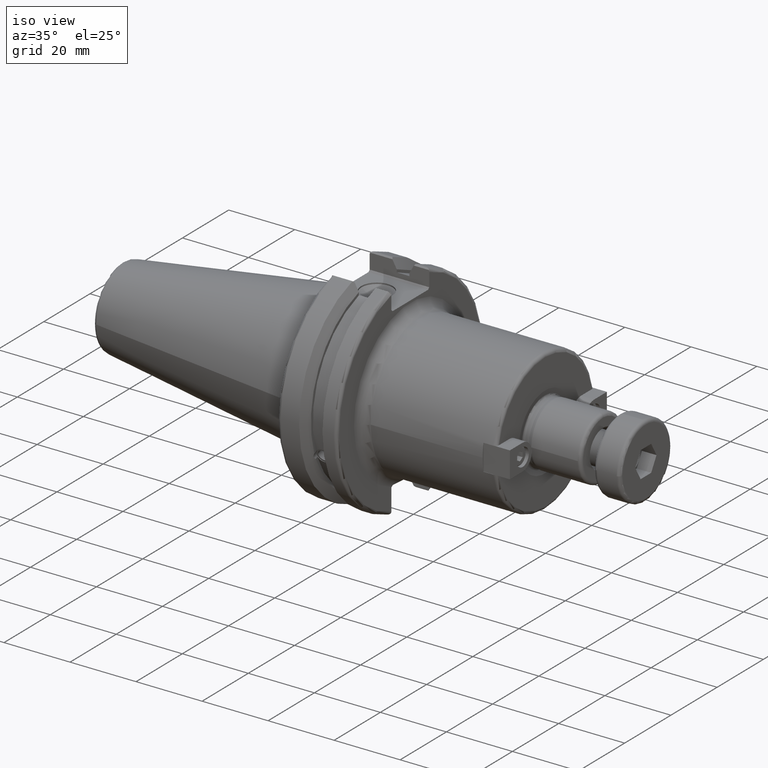
[diagram: clean part render]
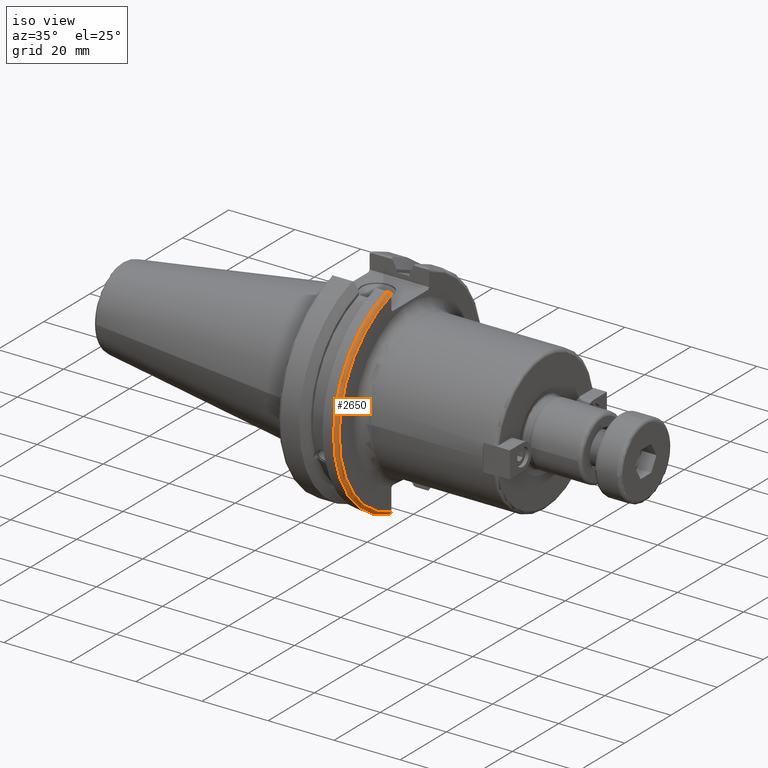
[diagram: same view with one face highlighted and labeled with its STEP entity id]
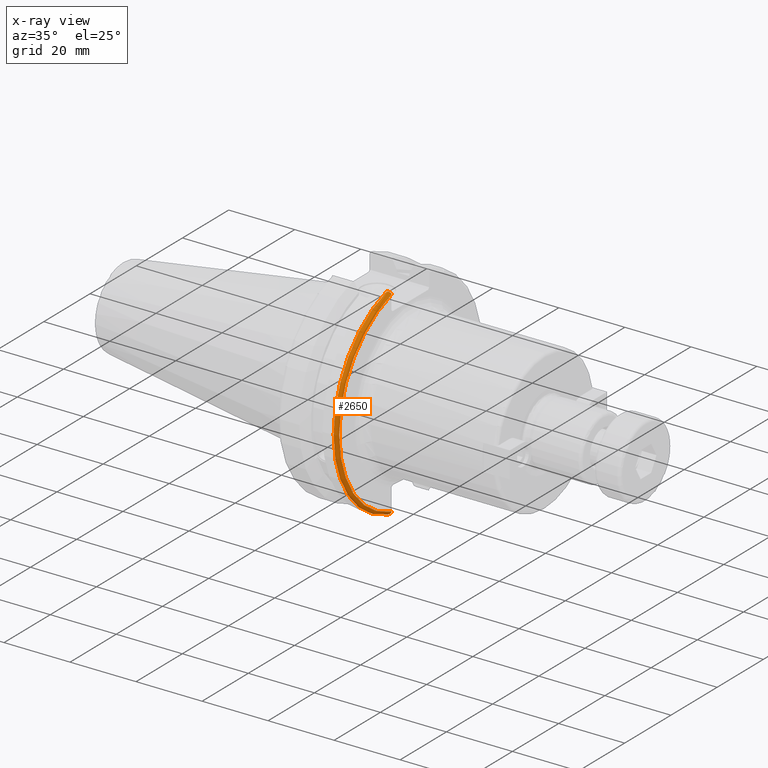
[diagram: x-ray of the same camera — body ghosted, the highlighted face saturated]
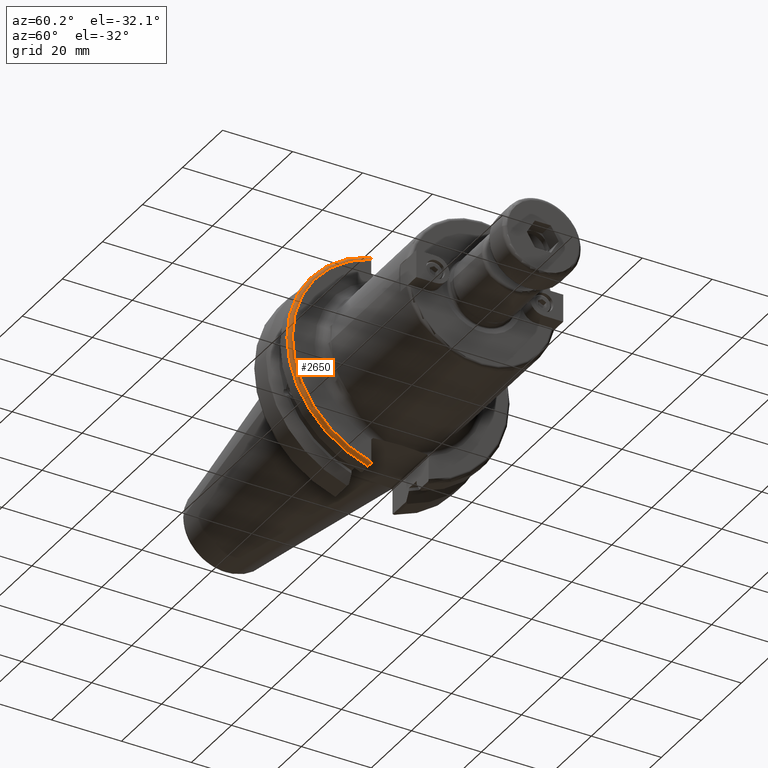
[diagram: same view with one face highlighted and labeled with its STEP entity id]
A machine part, iso view. The second image highlights one B-rep face of the part: STEP entity #2650.
The next image is the same camera in x-ray: the body ghosted, the highlighted face saturated — about 0% of this face is hidden behind the body in this view.
A second angle (auxiliary view) of the same face is appended — the face is thin or edge-on in the first view.
In plain terms, the highlighted toroidal blend (fillet) surface has major radius 30.75 mm and minor (blend) radius 1 mm.
Its self-contained STEP definition (entity closure, byte-faithful):
#102=TOROIDAL_SURFACE('',#2995,30.75,1.);
#205=B_SPLINE_CURVE_WITH_KNOTS('',3,(#4712,#4713,#4714,#4715,#4716,#4717),
 .UNSPECIFIED.,.F.,.F.,(4,2,4),(0.097738363091569,0.112311108149119,0.150804350305566),
 .UNSPECIFIED.);
#206=B_SPLINE_CURVE_WITH_KNOTS('',3,(#4719,#4720,#4721,#4722,#4723,#4724),
 .UNSPECIFIED.,.F.,.F.,(4,2,4),(0.452741154494497,0.491581665024871,0.505824174364156),
 .UNSPECIFIED.);
#207=B_SPLINE_CURVE_WITH_KNOTS('',3,(#4726,#4727,#4728,#4729,#4730,#4731,
#4732,#4733),.UNSPECIFIED.,.F.,.F.,(4,2,2,4),(-0.104180282751877,-0.0729784742461446,
-0.0343524753874984,0.),.UNSPECIFIED.);
#208=B_SPLINE_CURVE_WITH_KNOTS('',3,(#4736,#4737,#4738,#4739,#4740,#4741,
#4742,#4743),.UNSPECIFIED.,.F.,.F.,(4,2,2,4),(0.,0.0343524753874978,0.0729784742461449,
0.104180282751877),.UNSPECIFIED.);
#304=FACE_OUTER_BOUND('',#471,.T.);
#471=EDGE_LOOP('',(#2065,#2066,#2067,#2068,#2069,#2070));
#990=CIRCLE('',#2994,30.75);
#991=CIRCLE('',#2996,31.75);
#1201=VERTEX_POINT('',#4703);
#1202=VERTEX_POINT('',#4705);
#1204=VERTEX_POINT('',#4711);
#1205=VERTEX_POINT('',#4718);
#1206=VERTEX_POINT('',#4725);
#1207=VERTEX_POINT('',#4734);
#1519=EDGE_CURVE('',#1202,#1201,#990,.T.);
#1522=EDGE_CURVE('',#1204,#1202,#205,.T.);
#1523=EDGE_CURVE('',#1201,#1205,#206,.T.);
#1524=EDGE_CURVE('',#1205,#1206,#207,.T.);
#1525=EDGE_CURVE('',#1206,#1207,#991,.T.);
#1526=EDGE_CURVE('',#1207,#1204,#208,.T.);
#2065=ORIENTED_EDGE('',*,*,#1522,.T.);
#2066=ORIENTED_EDGE('',*,*,#1519,.T.);
#2067=ORIENTED_EDGE('',*,*,#1523,.T.);
#2068=ORIENTED_EDGE('',*,*,#1524,.T.);
#2069=ORIENTED_EDGE('',*,*,#1525,.T.);
#2070=ORIENTED_EDGE('',*,*,#1526,.T.);
#2650=ADVANCED_FACE('',(#304),#102,.T.);
#2994=AXIS2_PLACEMENT_3D('',#4706,#3539,#3540);
#2995=AXIS2_PLACEMENT_3D('',#4710,#3543,#3544);
#2996=AXIS2_PLACEMENT_3D('',#4735,#3545,#3546);
#3539=DIRECTION('center_axis',(-1.,0.,0.));
#3540=DIRECTION('ref_axis',(0.,-1.,1.60812264967664E-16));
#3543=DIRECTION('center_axis',(1.,0.,0.));
#3544=DIRECTION('ref_axis',(0.,0.,-1.));
#3545=DIRECTION('center_axis',(1.,0.,0.));
#3546=DIRECTION('ref_axis',(0.,-1.,1.60812264967664E-16));
#4703=CARTESIAN_POINT('',(19.05,-8.19,29.6392712461019));
#4705=CARTESIAN_POINT('',(19.05,-8.19,-29.6392712461019));
#4706=CARTESIAN_POINT('Origin',(19.05,0.,0.));
#4710=CARTESIAN_POINT('Origin',(18.05,0.,0.));
#4711=CARTESIAN_POINT('',(18.9058722749097,-8.19,-30.1755016258903));
#4712=CARTESIAN_POINT('Ctrl Pts',(18.9058722749097,-8.19,-30.1755016258903));
#4713=CARTESIAN_POINT('Ctrl Pts',(18.9324477233044,-8.19,-30.1299319366157));
#4714=CARTESIAN_POINT('Ctrl Pts',(18.9550700364447,-8.19,-30.0829389905409));
#4715=CARTESIAN_POINT('Ctrl Pts',(19.0210043632013,-8.19,-29.9188002007263));
#4716=CARTESIAN_POINT('Ctrl Pts',(19.05,-8.19,-29.76758205329));
#4717=CARTESIAN_POINT('Ctrl Pts',(19.05,-8.19,-29.6392712461019));
#4718=CARTESIAN_POINT('',(18.9058722749097,-8.19,30.1755016258903));
#4719=CARTESIAN_POINT('Ctrl Pts',(19.05,-8.19,29.6392712461019));
#4720=CARTESIAN_POINT('Ctrl Pts',(19.05,-8.19,29.7687396145364));
#4721=CARTESIAN_POINT('Ctrl Pts',(19.0204855670831,-8.19,29.9212724384851));
#4722=CARTESIAN_POINT('Ctrl Pts',(18.9539643471756,-8.19,30.0852355256475));
#4723=CARTESIAN_POINT('Ctrl Pts',(18.9318163728133,-8.19,30.131014531546));
#4724=CARTESIAN_POINT('Ctrl Pts',(18.9058722749097,-8.19,30.1755016258903));
#4725=CARTESIAN_POINT('',(18.05,-8.67204822802685,30.5427254764662));
#4726=CARTESIAN_POINT('Ctrl Pts',(18.9058722749097,-8.19,30.1755016258903));
#4727=CARTESIAN_POINT('Ctrl Pts',(18.8574463042989,-8.2703682833078,30.2367261024977));
#4728=CARTESIAN_POINT('Ctrl Pts',(18.7926702662319,-8.34909446036477,30.2966996242308));
#4729=CARTESIAN_POINT('Ctrl Pts',(18.6396724190507,-8.48862804755884,30.4029961692546));
#4730=CARTESIAN_POINT('Ctrl Pts',(18.5184414294771,-8.56482138642532,30.4610401774263));
#4731=CARTESIAN_POINT('Ctrl Pts',(18.2983170433775,-8.6471881193939,30.5237870709558));
#4732=CARTESIAN_POINT('Ctrl Pts',(18.1645082512917,-8.67204822802685,30.5427254764662));
#4733=CARTESIAN_POINT('Ctrl Pts',(18.05,-8.67204822802685,30.5427254764662));
#4734=CARTESIAN_POINT('',(18.05,-8.67204822802686,-30.5427254764662));
#4735=CARTESIAN_POINT('Origin',(18.05,0.,0.));
#4736=CARTESIAN_POINT('Ctrl Pts',(18.05,-8.67204822802685,-30.5427254764662));
#4737=CARTESIAN_POINT('Ctrl Pts',(18.1645082512917,-8.67204822802685,-30.5427254764662));
#4738=CARTESIAN_POINT('Ctrl Pts',(18.2983170433775,-8.6471881193939,-30.5237870709558));
#4739=CARTESIAN_POINT('Ctrl Pts',(18.5184414294771,-8.56482138642532,-30.4610401774263));
#4740=CARTESIAN_POINT('Ctrl Pts',(18.6396724190507,-8.48862804755883,-30.4029961692546));
#4741=CARTESIAN_POINT('Ctrl Pts',(18.7926702662319,-8.34909446036477,-30.2966996242308));
#4742=CARTESIAN_POINT('Ctrl Pts',(18.8574463042989,-8.2703682833078,-30.2367261024977));
#4743=CARTESIAN_POINT('Ctrl Pts',(18.9058722749097,-8.19,-30.1755016258903));